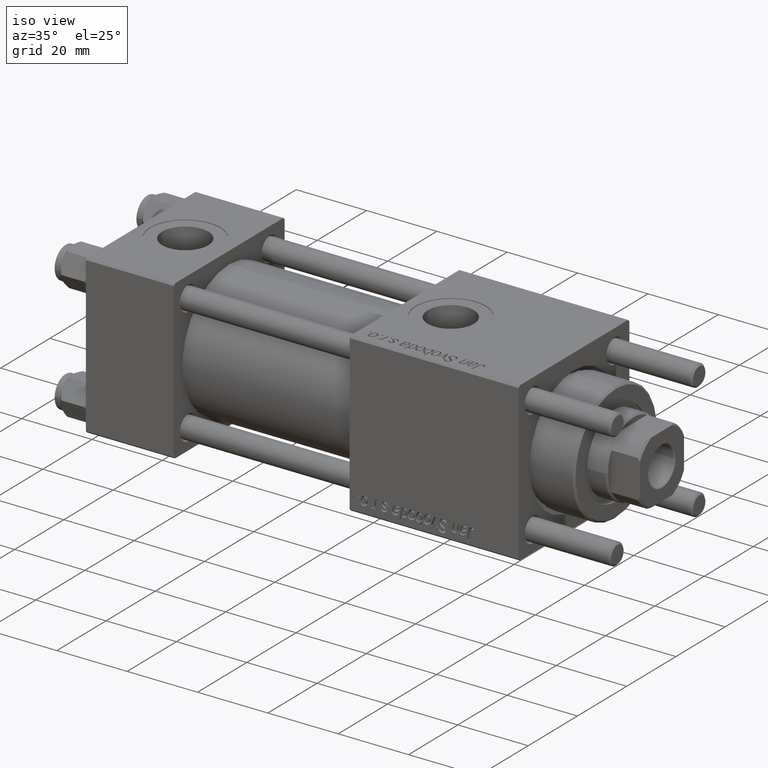
[diagram: clean part render]
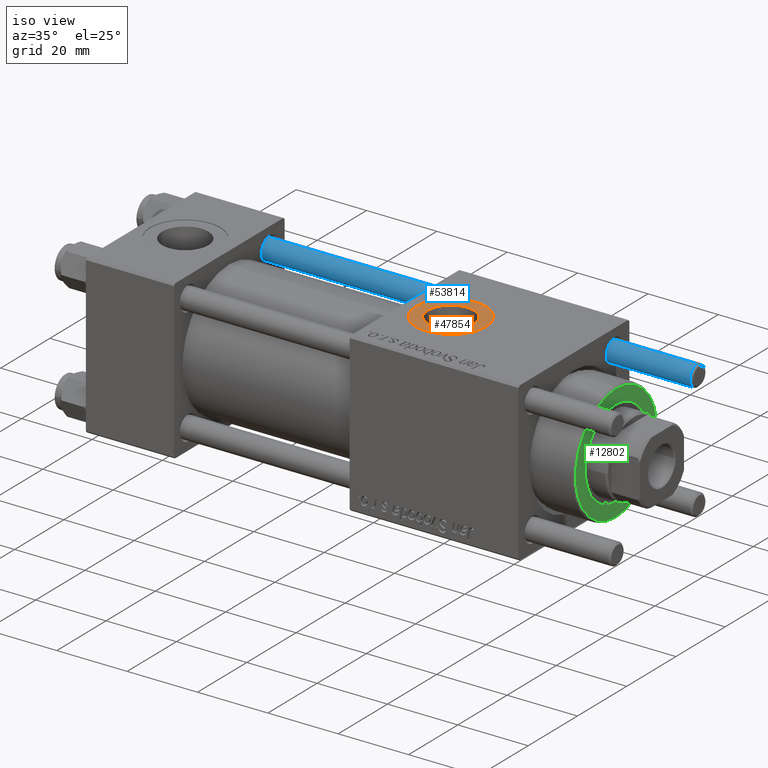
[diagram: same view with three faces highlighted in distinct colors, each labeled with its STEP entity id]
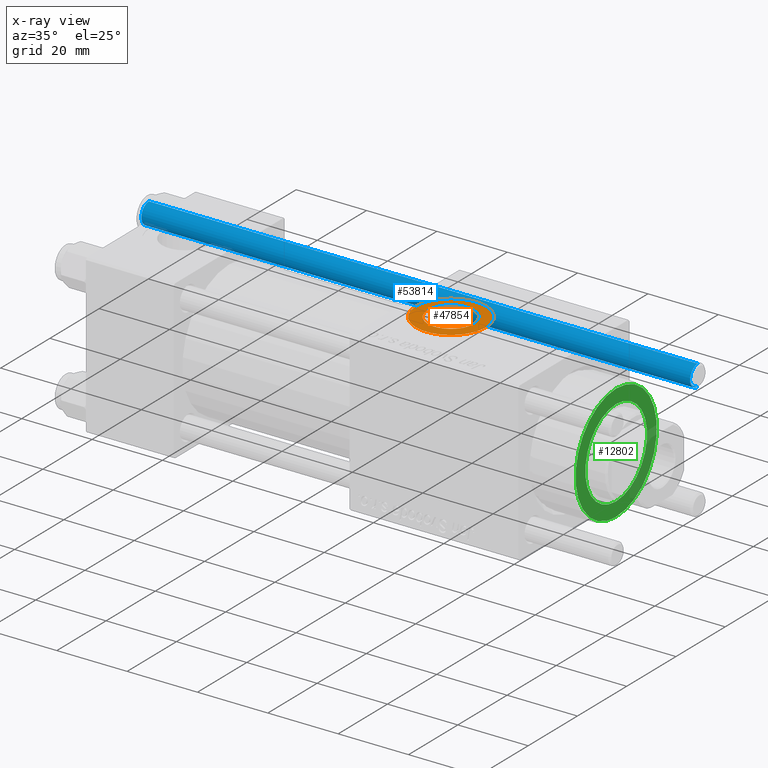
[diagram: x-ray of the same camera — body ghosted, the three highlighted faces saturated]
A machine part, iso view with three faces highlighted in distinct colors.
The next image is the same camera in x-ray (body ghosted, the three faces saturated) — at least one of them is partly hidden behind the body in this view.
Their STEP definitions:

[orange] entity #47854 — the highlighted planar face has unit normal (0, 0, 1).
#1331 = AXIS2_PLACEMENT_3D ( 'NONE', #13962, #48457, #23160 ) ;
#2626 = CIRCLE ( 'NONE', #27377, 6.580000000000002736 ) ;
#2630 = AXIS2_PLACEMENT_3D ( 'NONE', #6558, #3103, #28987 ) ;
#2734 = DIRECTION ( 'NONE',  ( 1.000000000000000000, 0.000000000000000000, -0.000000000000000000 ) ) ;
#3103 = DIRECTION ( 'NONE',  ( -0.000000000000000000, -0.000000000000000000, -1.000000000000000000 ) ) ;
#4809 = VERTEX_POINT ( 'NONE', #6954 ) ;
#5482 = DIRECTION ( 'NONE',  ( -0.000000000000000000, -0.000000000000000000, -1.000000000000000000 ) ) ;
#6558 = CARTESIAN_POINT ( 'NONE',  ( 88.00000000000001421, -5.204170427930420494E-15, 22.29999999999999716 ) ) ;
#6954 = CARTESIAN_POINT ( 'NONE',  ( 78.00000000000000000, -3.979523628783065857E-15, 22.29999999999999716 ) ) ;
#9797 = CARTESIAN_POINT ( 'NONE',  ( 88.00000000000001421, -5.204170427930420494E-15, 22.29999999999999716 ) ) ;
#10321 = VERTEX_POINT ( 'NONE', #47230 ) ;
#12324 = CARTESIAN_POINT ( 'NONE',  ( 94.58000000000001251, -4.398352834091461452E-15, 22.29999999999999716 ) ) ;
#13579 = VERTEX_POINT ( 'NONE', #12324 ) ;
#13962 = CARTESIAN_POINT ( 'NONE',  ( 88.00000000000001421, -5.204170427930420494E-15, 22.29999999999999716 ) ) ;
#15854 = EDGE_CURVE ( 'NONE', #50035, #13579, #37509, .T. ) ;
#19573 = CIRCLE ( 'NONE', #42500, 10.00000000000000888 ) ;
#20518 = EDGE_CURVE ( 'NONE', #13579, #50035, #2626, .T. ) ;
#20575 = DIRECTION ( 'NONE',  ( 0.000000000000000000, 0.000000000000000000, 1.000000000000000000 ) ) ;
#23160 = DIRECTION ( 'NONE',  ( 1.000000000000000000, 0.000000000000000000, 0.000000000000000000 ) ) ;
#25390 = EDGE_LOOP ( 'NONE', ( #47261, #26957 ) ) ;
#26957 = ORIENTED_EDGE ( 'NONE', *, *, #54480, .T. ) ;
#27377 = AXIS2_PLACEMENT_3D ( 'NONE', #9797, #5482, #40546 ) ;
#28987 = DIRECTION ( 'NONE',  ( 1.000000000000000000, 0.000000000000000000, 0.000000000000000000 ) ) ;
#30728 = CIRCLE ( 'NONE', #1331, 10.00000000000000888 ) ;
#31698 = AXIS2_PLACEMENT_3D ( 'NONE', #46981, #20575, #2734 ) ;
#32647 = CARTESIAN_POINT ( 'NONE',  ( 88.00000000000001421, -5.204170427930420494E-15, 22.29999999999999716 ) ) ;
#33221 = DIRECTION ( 'NONE',  ( 0.000000000000000000, 0.000000000000000000, 1.000000000000000000 ) ) ;
#33780 = FACE_OUTER_BOUND ( 'NONE', #25390, .T. ) ;
#34604 = PLANE ( 'NONE',  #31698 ) ;
#34636 = EDGE_CURVE ( 'NONE', #10321, #4809, #19573, .T. ) ;
#36797 = ORIENTED_EDGE ( 'NONE', *, *, #20518, .T. ) ;
#37509 = CIRCLE ( 'NONE', #2630, 6.580000000000002736 ) ;
#40546 = DIRECTION ( 'NONE',  ( 1.000000000000000000, 0.000000000000000000, 0.000000000000000000 ) ) ;
#40688 = DIRECTION ( 'NONE',  ( 1.000000000000000000, 0.000000000000000000, 0.000000000000000000 ) ) ;
#42231 = ORIENTED_EDGE ( 'NONE', *, *, #15854, .T. ) ;
#42500 = AXIS2_PLACEMENT_3D ( 'NONE', #32647, #33221, #40688 ) ;
#45394 = CARTESIAN_POINT ( 'NONE',  ( 81.42000000000000171, -5.204170427930420494E-15, 22.29999999999999716 ) ) ;
#46981 = CARTESIAN_POINT ( 'NONE',  ( 88.00000000000001421, -5.204170427930420494E-15, 22.29999999999999716 ) ) ;
#47230 = CARTESIAN_POINT ( 'NONE',  ( 98.00000000000001421, -5.204170427930420494E-15, 22.29999999999999716 ) ) ;
#47261 = ORIENTED_EDGE ( 'NONE', *, *, #34636, .T. ) ;
#47854 = ADVANCED_FACE ( 'NONE', ( #51310, #33780 ), #34604, .T. ) ;
#48457 = DIRECTION ( 'NONE',  ( 0.000000000000000000, 0.000000000000000000, 1.000000000000000000 ) ) ;
#50035 = VERTEX_POINT ( 'NONE', #45394 ) ;
#51310 = FACE_BOUND ( 'NONE', #56083, .T. ) ;
#54480 = EDGE_CURVE ( 'NONE', #4809, #10321, #30728, .T. ) ;
#56083 = EDGE_LOOP ( 'NONE', ( #42231, #36797 ) ) ;

[blue] entity #53814 — the highlighted cylindrical surface (edge-blend (fillet) strip) has radius 3 mm, axis along (1, -0, -0).
#451 = CARTESIAN_POINT ( 'NONE',  ( -3.000000000000000444, 0.000000000000000000, 157.0000000000000000 ) ) ;
#3691 = CARTESIAN_POINT ( 'NONE',  ( -3.000000000000000444, 0.000000000000000000, 156.5000000000000284 ) ) ;
#4751 = EDGE_LOOP ( 'NONE', ( #41870, #7663, #8771, #52776 ) ) ;
#7663 = ORIENTED_EDGE ( 'NONE', *, *, #20244, .T. ) ;
#8456 = DIRECTION ( 'NONE',  ( -0.000000000000000000, -0.000000000000000000, -1.000000000000000000 ) ) ;
#8771 = ORIENTED_EDGE ( 'NONE', *, *, #54583, .T. ) ;
#10743 = VERTEX_POINT ( 'NONE', #3691 ) ;
#14692 = AXIS2_PLACEMENT_3D ( 'NONE', #21987, #22270, #17390 ) ;
#15134 = DIRECTION ( 'NONE',  ( -0.000000000000000000, -0.000000000000000000, -1.000000000000000000 ) ) ;
#17238 = CARTESIAN_POINT ( 'NONE',  ( -3.000000000000000444, 0.000000000000000000, 0.4999999999999726885 ) ) ;
#17241 = EDGE_CURVE ( 'NONE', #17700, #27388, #24042, .T. ) ;
#17390 = DIRECTION ( 'NONE',  ( 1.000000000000000000, 0.000000000000000000, 0.000000000000000000 ) ) ;
#17700 = VERTEX_POINT ( 'NONE', #25261 ) ;
#20244 = EDGE_CURVE ( 'NONE', #17700, #10743, #43884, .T. ) ;
#20668 = VECTOR ( 'NONE', #49027, 1000.000000000000000 ) ;
#21987 = CARTESIAN_POINT ( 'NONE',  ( 0.000000000000000000, 0.000000000000000000, 0.4999999999999726885 ) ) ;
#22270 = DIRECTION ( 'NONE',  ( -0.000000000000000000, -0.000000000000000000, 1.000000000000000000 ) ) ;
#22891 = LINE ( 'NONE', #451, #20668 ) ;
#24042 = LINE ( 'NONE', #51343, #31114 ) ;
#25261 = CARTESIAN_POINT ( 'NONE',  ( 3.000000000000000444, 3.673940397442060361E-16, 156.5000000000000284 ) ) ;
#26822 = EDGE_CURVE ( 'NONE', #42726, #27388, #39464, .T. ) ;
#27388 = VERTEX_POINT ( 'NONE', #43663 ) ;
#31114 = VECTOR ( 'NONE', #15134, 1000.000000000000000 ) ;
#31713 = DIRECTION ( 'NONE',  ( 1.000000000000000000, 0.000000000000000000, 0.000000000000000000 ) ) ;
#34373 = AXIS2_PLACEMENT_3D ( 'NONE', #56466, #8456, #43515 ) ;
#36312 = CARTESIAN_POINT ( 'NONE',  ( 0.000000000000000000, 0.000000000000000000, 156.5000000000000284 ) ) ;
#39464 = CIRCLE ( 'NONE', #14692, 3.000000000000000444 ) ;
#41870 = ORIENTED_EDGE ( 'NONE', *, *, #17241, .F. ) ;
#42726 = VERTEX_POINT ( 'NONE', #17238 ) ;
#43515 = DIRECTION ( 'NONE',  ( -1.000000000000000000, 0.000000000000000000, 0.000000000000000000 ) ) ;
#43663 = CARTESIAN_POINT ( 'NONE',  ( 3.000000000000000444, 3.673940397442060361E-16, 0.4999999999999726885 ) ) ;
#43807 = FACE_OUTER_BOUND ( 'NONE', #4751, .T. ) ;
#43884 = CIRCLE ( 'NONE', #48496, 3.000000000000000444 ) ;
#48496 = AXIS2_PLACEMENT_3D ( 'NONE', #36312, #48677, #31713 ) ;
#48677 = DIRECTION ( 'NONE',  ( 0.000000000000000000, 0.000000000000000000, -1.000000000000000000 ) ) ;
#49027 = DIRECTION ( 'NONE',  ( -0.000000000000000000, -0.000000000000000000, -1.000000000000000000 ) ) ;
#51343 = CARTESIAN_POINT ( 'NONE',  ( 3.000000000000000444, 3.673940397442060361E-16, 157.0000000000000000 ) ) ;
#52737 = CYLINDRICAL_SURFACE ( 'NONE', #34373, 3.000000000000000444 ) ;
#52776 = ORIENTED_EDGE ( 'NONE', *, *, #26822, .T. ) ;
#53814 = ADVANCED_FACE ( 'NONE', ( #43807 ), #52737, .T. ) ;
#54583 = EDGE_CURVE ( 'NONE', #10743, #42726, #22891, .T. ) ;
#56466 = CARTESIAN_POINT ( 'NONE',  ( 0.000000000000000000, 0.000000000000000000, 157.0000000000000000 ) ) ;

[green] entity #12802 — the highlighted planar face has unit normal (1, 0, 0).
#384 = AXIS2_PLACEMENT_3D ( 'NONE', #51806, #20514, #46922 ) ;
#481 = AXIS2_PLACEMENT_3D ( 'NONE', #3438, #3710, #50881 ) ;
#3438 = CARTESIAN_POINT ( 'NONE',  ( 0.000000000000000000, 0.000000000000000000, 40.70000000000000284 ) ) ;
#3710 = DIRECTION ( 'NONE',  ( 0.000000000000000000, 0.000000000000000000, 1.000000000000000000 ) ) ;
#3776 = EDGE_CURVE ( 'NONE', #6593, #11903, #30907, .T. ) ;
#6013 = CARTESIAN_POINT ( 'NONE',  ( -16.49999999999999289, 0.000000000000000000, 40.70000000000000284 ) ) ;
#6593 = VERTEX_POINT ( 'NONE', #7266 ) ;
#7266 = CARTESIAN_POINT ( 'NONE',  ( -12.50000000000000000, 1.530808498934191521E-15, 40.70000000000000284 ) ) ;
#7568 = FACE_OUTER_BOUND ( 'NONE', #15719, .T. ) ;
#9873 = EDGE_CURVE ( 'NONE', #11903, #6593, #34625, .T. ) ;
#11903 = VERTEX_POINT ( 'NONE', #26972 ) ;
#12802 = ADVANCED_FACE ( 'NONE', ( #21101, #7568 ), #25680, .T. ) ;
#13637 = ORIENTED_EDGE ( 'NONE', *, *, #3776, .F. ) ;
#14146 = CIRCLE ( 'NONE', #384, 16.49999999999999289 ) ;
#15719 = EDGE_LOOP ( 'NONE', ( #28777, #49233 ) ) ;
#16498 = CARTESIAN_POINT ( 'NONE',  ( 0.000000000000000000, 0.000000000000000000, 40.70000000000000284 ) ) ;
#17051 = DIRECTION ( 'NONE',  ( 0.000000000000000000, 0.000000000000000000, 1.000000000000000000 ) ) ;
#17414 = DIRECTION ( 'NONE',  ( 1.000000000000000000, 0.000000000000000000, 0.000000000000000000 ) ) ;
#19060 = AXIS2_PLACEMENT_3D ( 'NONE', #16498, #17051, #47509 ) ;
#20514 = DIRECTION ( 'NONE',  ( 0.000000000000000000, 0.000000000000000000, 1.000000000000000000 ) ) ;
#20874 = AXIS2_PLACEMENT_3D ( 'NONE', #39244, #48433, #17414 ) ;
#20990 = CARTESIAN_POINT ( 'NONE',  ( 16.49999999999999289, 2.051283388571816493E-15, 40.70000000000000284 ) ) ;
#21101 = FACE_BOUND ( 'NONE', #34988, .T. ) ;
#21248 = DIRECTION ( 'NONE',  ( 1.000000000000000000, 0.000000000000000000, 0.000000000000000000 ) ) ;
#22872 = VERTEX_POINT ( 'NONE', #20990 ) ;
#25555 = CARTESIAN_POINT ( 'NONE',  ( 0.000000000000000000, 0.000000000000000000, 40.70000000000000284 ) ) ;
#25680 = PLANE ( 'NONE',  #19060 ) ;
#26972 = CARTESIAN_POINT ( 'NONE',  ( 12.50000000000000000, 0.000000000000000000, 40.70000000000000284 ) ) ;
#28777 = ORIENTED_EDGE ( 'NONE', *, *, #55518, .T. ) ;
#29699 = VERTEX_POINT ( 'NONE', #6013 ) ;
#30907 = CIRCLE ( 'NONE', #53838, 12.50000000000000000 ) ;
#33457 = ORIENTED_EDGE ( 'NONE', *, *, #9873, .F. ) ;
#34625 = CIRCLE ( 'NONE', #20874, 12.50000000000000000 ) ;
#34988 = EDGE_LOOP ( 'NONE', ( #33457, #13637 ) ) ;
#39244 = CARTESIAN_POINT ( 'NONE',  ( 0.000000000000000000, 0.000000000000000000, 40.70000000000000284 ) ) ;
#43060 = DIRECTION ( 'NONE',  ( 0.000000000000000000, 0.000000000000000000, 1.000000000000000000 ) ) ;
#43206 = EDGE_CURVE ( 'NONE', #22872, #29699, #14146, .T. ) ;
#46922 = DIRECTION ( 'NONE',  ( 1.000000000000000000, 0.000000000000000000, 0.000000000000000000 ) ) ;
#47509 = DIRECTION ( 'NONE',  ( 1.000000000000000000, 0.000000000000000000, -0.000000000000000000 ) ) ;
#48433 = DIRECTION ( 'NONE',  ( 0.000000000000000000, 0.000000000000000000, 1.000000000000000000 ) ) ;
#49233 = ORIENTED_EDGE ( 'NONE', *, *, #43206, .T. ) ;
#50881 = DIRECTION ( 'NONE',  ( 1.000000000000000000, 0.000000000000000000, 0.000000000000000000 ) ) ;
#51806 = CARTESIAN_POINT ( 'NONE',  ( 0.000000000000000000, 0.000000000000000000, 40.70000000000000284 ) ) ;
#53747 = CIRCLE ( 'NONE', #481, 16.49999999999999289 ) ;
#53838 = AXIS2_PLACEMENT_3D ( 'NONE', #25555, #43060, #21248 ) ;
#55518 = EDGE_CURVE ( 'NONE', #29699, #22872, #53747, .T. ) ;